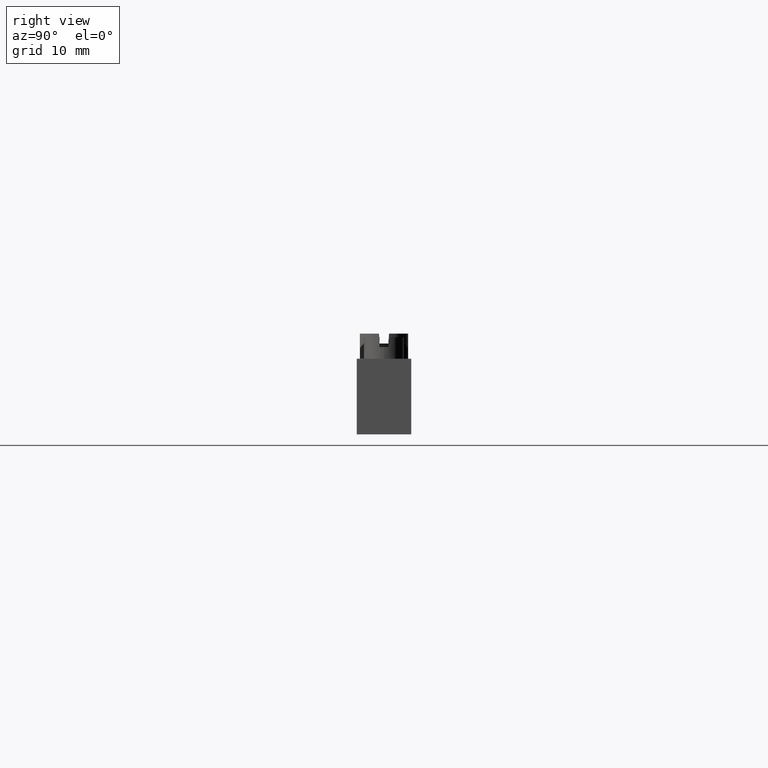
[diagram: clean part render]
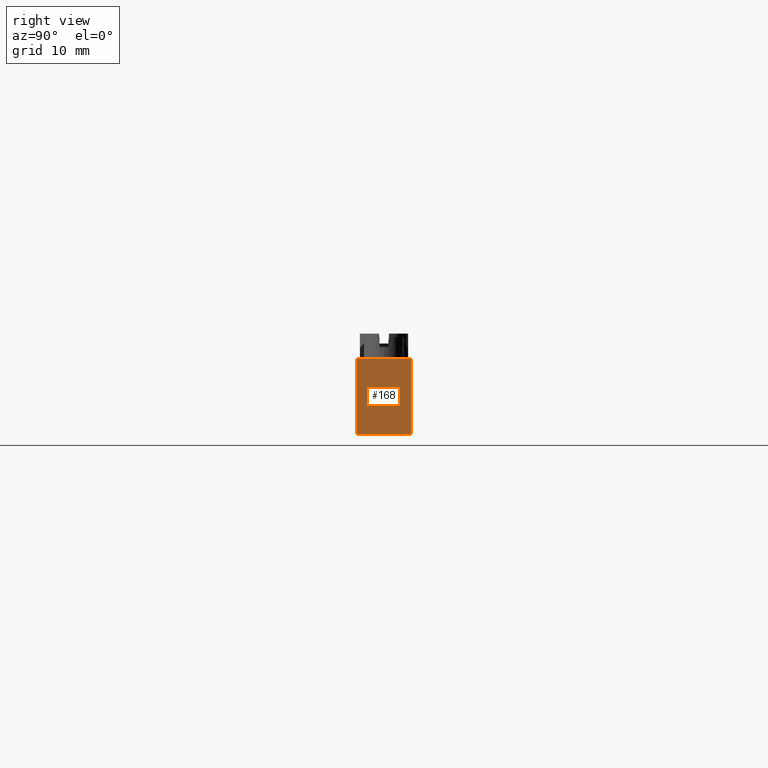
[diagram: same view with one face highlighted and labeled with its STEP entity id]
A machine part, right view. The second image highlights one B-rep face of the part: STEP entity #168.
In plain terms, the highlighted planar face has unit normal (-1, 0, 0).
Its self-contained STEP definition (entity closure, byte-faithful):
#28 = EDGE_CURVE ( 'NONE', #7020, #7686, #548, .T. ) ;
#47 = EDGE_CURVE ( 'NONE', #7020, #7690, #613, .T. ) ;
#63 = EDGE_CURVE ( 'NONE', #7690, #7010, #647, .T. ) ;
#64 = EDGE_CURVE ( 'NONE', #7010, #7686, #668, .T. ) ;
#168 = ADVANCED_FACE ( 'NONE', ( #1129 ), #1126, .F. ) ;
#412 = EDGE_LOOP ( 'NONE', ( #3509, #3583, #3589, #3549 ) ) ;
#514 = DIRECTION ( 'NONE',  ( 0.0000000000000000000, 0.0000000000000000000, -1.000000000000000000 ) ) ;
#548 = LINE ( 'NONE', #550, #7481 ) ;
#550 = CARTESIAN_POINT ( 'NONE',  ( 85.77500000000000600, 0.0000000000000000000, 9.000000000000001800 ) ) ;
#604 = CARTESIAN_POINT ( 'NONE',  ( 85.77500000000000600, 6.499999999999999100, 9.000000000000001800 ) ) ;
#613 = LINE ( 'NONE', #604, #7493 ) ;
#621 = DIRECTION ( 'NONE',  ( 0.0000000000000000000, 1.000000000000000000, 0.0000000000000000000 ) ) ;
#640 = CARTESIAN_POINT ( 'NONE',  ( 85.77500000000000600, 6.500000000000000000, 9.000000000000001800 ) ) ;
#647 = LINE ( 'NONE', #640, #7588 ) ;
#651 = DIRECTION ( 'NONE',  ( 0.0000000000000000000, 0.0000000000000000000, -1.000000000000000000 ) ) ;
#668 = LINE ( 'NONE', #672, #7567 ) ;
#670 = DIRECTION ( 'NONE',  ( 0.0000000000000000000, -1.000000000000000000, 0.0000000000000000000 ) ) ;
#672 = CARTESIAN_POINT ( 'NONE',  ( 85.77500000000000600, 0.0000000000000000000, 0.0000000000000000000 ) ) ;
#1126 = PLANE ( 'NONE',  #7791 ) ;
#1129 = FACE_OUTER_BOUND ( 'NONE', #412, .T. ) ;
#1133 = DIRECTION ( 'NONE',  ( 0.0000000000000000000, 0.0000000000000000000, 1.000000000000000000 ) ) ;
#1139 = DIRECTION ( 'NONE',  ( -1.000000000000000000, 0.0000000000000000000, 0.0000000000000000000 ) ) ;
#1154 = CARTESIAN_POINT ( 'NONE',  ( 85.77500000000000600, 0.0000000000000000000, 9.000000000000001800 ) ) ;
#2038 = CARTESIAN_POINT ( 'NONE',  ( 85.77500000000000600, 0.0000000000000000000, 9.000000000000001800 ) ) ;
#2288 = CARTESIAN_POINT ( 'NONE',  ( 85.77500000000000600, 6.499999999999999100, 0.0000000000000000000 ) ) ;
#3509 = ORIENTED_EDGE ( 'NONE', *, *, #63, .F. ) ;
#3549 = ORIENTED_EDGE ( 'NONE', *, *, #64, .F. ) ;
#3583 = ORIENTED_EDGE ( 'NONE', *, *, #47, .F. ) ;
#3589 = ORIENTED_EDGE ( 'NONE', *, *, #28, .T. ) ;
#5798 = CARTESIAN_POINT ( 'NONE',  ( 85.77500000000000600, 6.500000000000000000, 9.000000000000001800 ) ) ;
#5827 = CARTESIAN_POINT ( 'NONE',  ( 85.77500000000000600, 0.0000000000000000000, 0.0000000000000000000 ) ) ;
#7010 = VERTEX_POINT ( 'NONE', #2288 ) ;
#7020 = VERTEX_POINT ( 'NONE', #2038 ) ;
#7481 = VECTOR ( 'NONE', #514, 1000.000000000000000 ) ;
#7493 = VECTOR ( 'NONE', #621, 1000.000000000000000 ) ;
#7567 = VECTOR ( 'NONE', #670, 1000.000000000000000 ) ;
#7588 = VECTOR ( 'NONE', #651, 1000.000000000000000 ) ;
#7686 = VERTEX_POINT ( 'NONE', #5827 ) ;
#7690 = VERTEX_POINT ( 'NONE', #5798 ) ;
#7791 = AXIS2_PLACEMENT_3D ( 'NONE', #1154, #1139, #1133 ) ;